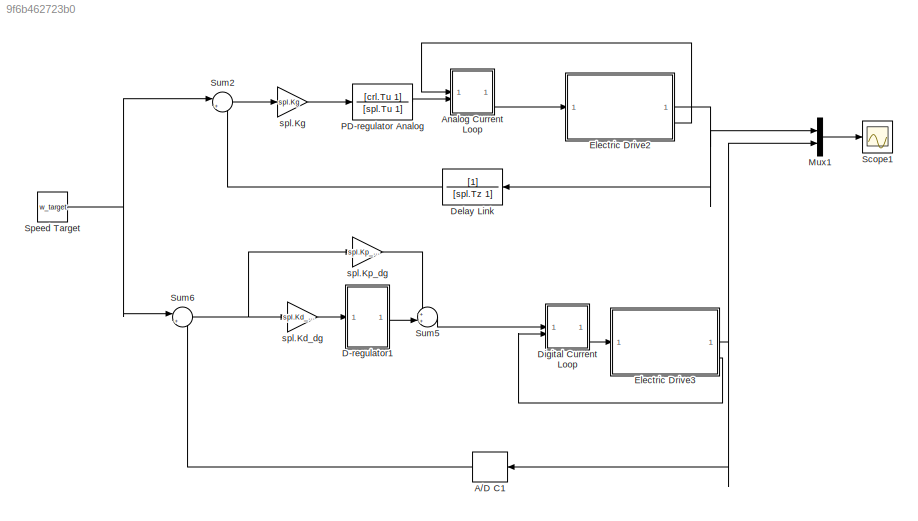
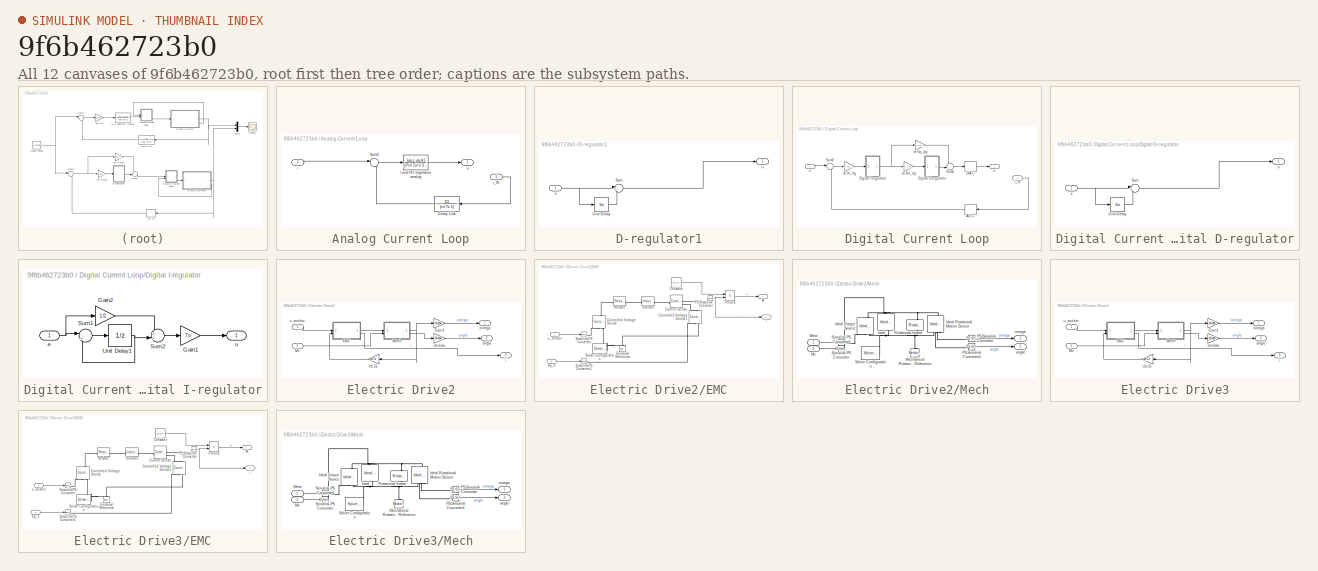
[diagram: thumbnail index - all 12 canvases of the model, root first then tree order]
MODEL slx_9f6b462723b0
KIND model
CONFIG AbsTol = auto
CONFIG EnableMultiTasking = off
CONFIG FixedStep = To/100
CONFIG MaxStep = auto
CONFIG MinStep = auto
CONFIG RelTol = 1e-3
CONFIG SampleTimeConstraint = Unconstrained
CONFIG SolverName = ode3
CONFIG StartTime = 0.0
CONFIG StopTime = Tmdl
BLOCK [ZeroOrderHold] A//D C1
  SampleTime = To
BLOCK [SubSystem] Analog Current Loop
BLOCK [TransferFcn] Analog Current Loop/Delay Link
  Denominator = [crl.Tz 1]
BLOCK [TransferFcn] Analog Current Loop/I and PD regulators analog
  Denominator = [3*crl.Tu^2 3*crl.Tu 0]
  Numerator = [ob.L ob.R]
BLOCK [Sum] Analog Current Loop/Sum2
  Inputs = |+-
BLOCK [Inport] Analog Current Loop/i
  Port = 2
BLOCK [Inport] Analog Current Loop/i_fb
BLOCK [Outport] Analog Current Loop/u
BLOCK [SubSystem] D-regulator1
BLOCK [Sum] D-regulator1/Sum
  Inputs = |+-
BLOCK [UnitDelay] D-regulator1/Unit Delay
  HasFrameUpgradeWarning = on
  SampleTime = To
BLOCK [Inport] D-regulator1/e
BLOCK [Outport] D-regulator1/u
BLOCK [TransferFcn] Delay Link
  Denominator = [spl.Tz 1]
BLOCK [SubSystem] Digital Current Loop
BLOCK [ZeroOrderHold] Digital Current Loop/A//D C
  SampleTime = To
BLOCK [ZeroOrderHold] Digital Current Loop/D//A C
  SampleTime = To
BLOCK [SubSystem] Digital Current Loop/Digital D-regulator
BLOCK [Sum] Digital Current Loop/Digital D-regulator/Sum
  Inputs = |+-
BLOCK [UnitDelay] Digital Current Loop/Digital D-regulator/Unit Delay
  HasFrameUpgradeWarning = on
  SampleTime = To
BLOCK [Inport] Digital Current Loop/Digital D-regulator/e
BLOCK [Outport] Digital Current Loop/Digital D-regulator/u
BLOCK [SubSystem] Digital Current Loop/Digital I-regulator
BLOCK [Gain] Digital Current Loop/Digital I-regulator/Gain1
  Gain = To
BLOCK [Gain] Digital Current Loop/Digital I-regulator/Gain2
  Gain = 1/2
BLOCK [Sum] Digital Current Loop/Digital I-regulator/Sum1
  Inputs = |++
BLOCK [Sum] Digital Current Loop/Digital I-regulator/Sum2
  Inputs = ++|
BLOCK [UnitDelay] Digital Current Loop/Digital I-regulator/Unit Delay1
  HasFrameUpgradeWarning = on
  SampleTime = To
BLOCK [Inport] Digital Current Loop/Digital I-regulator/e
BLOCK [Outport] Digital Current Loop/Digital I-regulator/u
BLOCK [Sum] Digital Current Loop/Sum3
  Inputs = |+-
BLOCK [Sum] Digital Current Loop/Sum4
  Inputs = ++|
BLOCK [Gain] Digital Current Loop/crl.Kd_dg
  Gain = crl.Kd_dg
BLOCK [Gain] Digital Current Loop/crl.Ki_dg
  Gain = crl.Ki_dg
BLOCK [Gain] Digital Current Loop/crl.Kp_dg
  Gain = crl.Kp_dg
BLOCK [Inport] Digital Current Loop/e
BLOCK [Inport] Digital Current Loop/i_fb
  Port = 2
BLOCK [Outport] Digital Current Loop/u
BLOCK [SubSystem] Electric Drive2
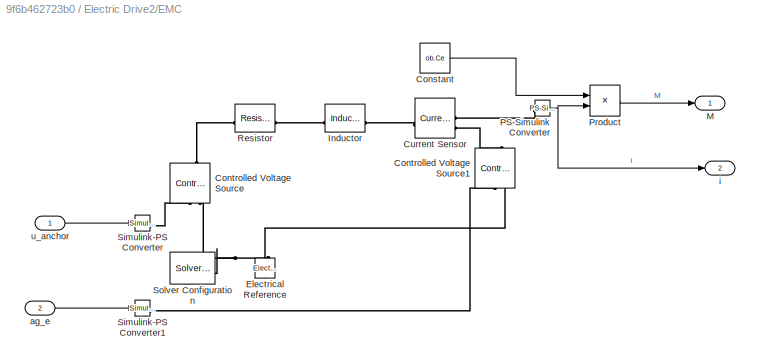
BLOCK [SubSystem] Electric Drive2/EMC
BLOCK [Constant] Electric Drive2/EMC/Constant
  Value = ob.Ce
BLOCK [Reference] Electric Drive2/EMC/Controlled Voltage Source  REF=fl_lib/Electrical/Electrical Sources/Controlled Voltage
Source
  NameLocation = right
  SourceBlock = fl_lib/Electrical/Electrical Sources/Controlled Voltage\nSource
  SourceType = Controlled Voltage\nSource
BLOCK [Reference] Electric Drive2/EMC/Controlled Voltage Source1  REF=fl_lib/Electrical/Electrical Sources/Controlled Voltage
Source
  NameLocation = right
  SourceBlock = fl_lib/Electrical/Electrical Sources/Controlled Voltage\nSource
  SourceType = Controlled Voltage\nSource
BLOCK [Reference] Electric Drive2/EMC/Current Sensor  REF=fl_lib/Electrical/Electrical Sensors/Current Sensor
  SourceBlock = fl_lib/Electrical/Electrical Sensors/Current Sensor
  SourceType = Current Sensor
BLOCK [Reference] Electric Drive2/EMC/Electrical Reference  REF=fl_lib/Electrical/Electrical Elements/Electrical Reference
  NameLocation = right
  SourceBlock = fl_lib/Electrical/Electrical Elements/Electrical Reference
  SourceType = Electrical Reference
BLOCK [Reference] Electric Drive2/EMC/Inductor  REF=fl_lib/Electrical/Electrical Elements/Inductor
  SourceBlock = fl_lib/Electrical/Electrical Elements/Inductor
  SourceType = Inductor
BLOCK [Outport] Electric Drive2/EMC/M
BLOCK [Reference] Electric Drive2/EMC/PS-Simulink Converter  REF=nesl_utility/PS-Simulink
Converter
  SourceBlock = nesl_utility/PS-Simulink\nConverter
  SourceType = PS-Simulink\nConverter
BLOCK [Product] Electric Drive2/EMC/Product
BLOCK [Reference] Electric Drive2/EMC/Resistor  REF=fl_lib/Electrical/Electrical Elements/Resistor
  SourceBlock = fl_lib/Electrical/Electrical Elements/Resistor
  SourceType = Resistor
BLOCK [Reference] Electric Drive2/EMC/Simulink-PS Converter  REF=nesl_utility/Simulink-PS
Converter
  SourceBlock = nesl_utility/Simulink-PS\nConverter
  SourceType = Simulink-PS\nConverter
BLOCK [Reference] Electric Drive2/EMC/Simulink-PS Converter1  REF=nesl_utility/Simulink-PS
Converter
  SourceBlock = nesl_utility/Simulink-PS\nConverter
  SourceType = Simulink-PS\nConverter
BLOCK [Reference] Electric Drive2/EMC/Solver Configuration  REF=nesl_utility/Solver
Configuration
  SourceBlock = nesl_utility/Solver\nConfiguration
  SourceType = Solver\nConfiguration
BLOCK [Inport] Electric Drive2/EMC/ag_e
  Port = 2
BLOCK [Outport] Electric Drive2/EMC/i
  Port = 2
BLOCK [Inport] Electric Drive2/EMC/u_anchor
BLOCK [Gain] Electric Drive2/Gain1
  Gain = ob.kdw
BLOCK [Inport] Electric Drive2/Mc
  Port = 2
BLOCK [SubSystem] Electric Drive2/Mech
BLOCK [Reference] Electric Drive2/Mech/Ideal Rotational Motion Sensor  REF=fl_lib/Mechanical/Mechanical Sensors/Ideal Rotational
Motion Sensor
  NameLocation = left
  SourceBlock = fl_lib/Mechanical/Mechanical Sensors/Ideal Rotational\nMotion Sensor
  SourceType = Ideal Rotational\nMotion Sensor
BLOCK [Reference] Electric Drive2/Mech/Ideal Torque Source  REF=fl_lib/Mechanical/Mechanical Sources/Ideal Torque Source
  NameLocation = right
  SourceBlock = fl_lib/Mechanical/Mechanical Sources/Ideal Torque Source
  SourceType = Ideal Torque Source
BLOCK [Inport] Electric Drive2/Mech/Mc
  Port = 2
BLOCK [Reference] Electric Drive2/Mech/Mechanical Rotational Reference  REF=fl_lib/Mechanical/Rotational Elements/Mechanical
Rotational Reference
  NameLocation = right
  SourceBlock = fl_lib/Mechanical/Rotational Elements/Mechanical\nRotational Reference
  SourceType = Mechanical\nRotational Reference
BLOCK [Inport] Electric Drive2/Mech/Mme
BLOCK [Reference] Electric Drive2/Mech/PS-Simulink Converter  REF=nesl_utility/PS-Simulink
Converter
  SourceBlock = nesl_utility/PS-Simulink\nConverter
  SourceType = PS-Simulink\nConverter
BLOCK [Reference] Electric Drive2/Mech/PS-Simulink Converter1  REF=nesl_utility/PS-Simulink
Converter
  SourceBlock = nesl_utility/PS-Simulink\nConverter
  SourceType = PS-Simulink\nConverter
BLOCK [Reference] Electric Drive2/Mech/Rotational Inerter  REF=fl_lib/Mechanical/Rotational Elements/Rotational Inerter
  NameLocation = left
  SourceBlock = fl_lib/Mechanical/Rotational Elements/Rotational Inerter
  SourceType = Rotational Inerter
BLOCK [Reference] Electric Drive2/Mech/Simulink-PS Converter  REF=nesl_utility/Simulink-PS
Converter
  SourceBlock = nesl_utility/Simulink-PS\nConverter
  SourceType = Simulink-PS\nConverter
BLOCK [Reference] Electric Drive2/Mech/Simulink-PS Converter1  REF=nesl_utility/Simulink-PS
Converter
  SourceBlock = nesl_utility/Simulink-PS\nConverter
  SourceType = Simulink-PS\nConverter
BLOCK [Reference] Electric Drive2/Mech/Solver Configuration  REF=nesl_utility/Solver
Configuration
  SourceBlock = nesl_utility/Solver\nConfiguration
  SourceType = Solver\nConfiguration
BLOCK [Outport] Electric Drive2/Mech/angle
  Port = 2
BLOCK [Reference] Electric Drive2/Mech/load  REF=fl_lib/Mechanical/Mechanical Sources/Ideal Torque Source
  SourceBlock = fl_lib/Mechanical/Mechanical Sources/Ideal Torque Source
  SourceType = Ideal Torque Source
BLOCK [Outport] Electric Drive2/Mech/omega
BLOCK [Outport] Electric Drive2/angle
  Port = 2
BLOCK [Outport] Electric Drive2/i
  Port = 3
BLOCK [Gain] Electric Drive2/ob.Ce
  Gain = ob.Ce
BLOCK [Gain] Electric Drive2/ob.kdw
  Gain = ob.kdw
  NameLocation = top
BLOCK [Outport] Electric Drive2/omega
BLOCK [Inport] Electric Drive2/u_anchor
BLOCK [SubSystem] Electric Drive3
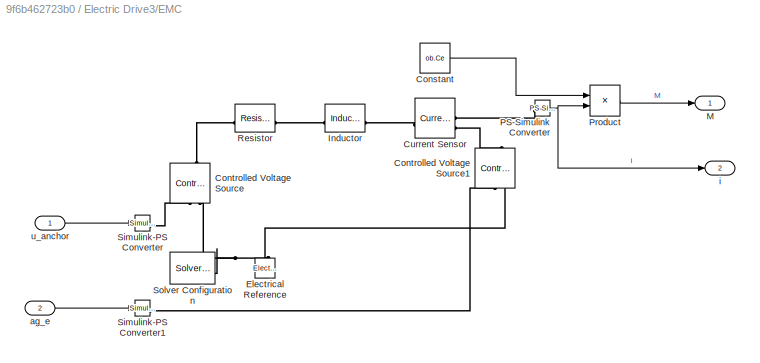
BLOCK [SubSystem] Electric Drive3/EMC
BLOCK [Constant] Electric Drive3/EMC/Constant
  Value = ob.Ce
BLOCK [Reference] Electric Drive3/EMC/Controlled Voltage Source  REF=fl_lib/Electrical/Electrical Sources/Controlled Voltage
Source
  NameLocation = right
  SourceBlock = fl_lib/Electrical/Electrical Sources/Controlled Voltage\nSource
  SourceType = Controlled Voltage\nSource
BLOCK [Reference] Electric Drive3/EMC/Controlled Voltage Source1  REF=fl_lib/Electrical/Electrical Sources/Controlled Voltage
Source
  NameLocation = right
  SourceBlock = fl_lib/Electrical/Electrical Sources/Controlled Voltage\nSource
  SourceType = Controlled Voltage\nSource
BLOCK [Reference] Electric Drive3/EMC/Current Sensor  REF=fl_lib/Electrical/Electrical Sensors/Current Sensor
  SourceBlock = fl_lib/Electrical/Electrical Sensors/Current Sensor
  SourceType = Current Sensor
BLOCK [Reference] Electric Drive3/EMC/Electrical Reference  REF=fl_lib/Electrical/Electrical Elements/Electrical Reference
  NameLocation = right
  SourceBlock = fl_lib/Electrical/Electrical Elements/Electrical Reference
  SourceType = Electrical Reference
BLOCK [Reference] Electric Drive3/EMC/Inductor  REF=fl_lib/Electrical/Electrical Elements/Inductor
  SourceBlock = fl_lib/Electrical/Electrical Elements/Inductor
  SourceType = Inductor
BLOCK [Outport] Electric Drive3/EMC/M
BLOCK [Reference] Electric Drive3/EMC/PS-Simulink Converter  REF=nesl_utility/PS-Simulink
Converter
  SourceBlock = nesl_utility/PS-Simulink\nConverter
  SourceType = PS-Simulink\nConverter
BLOCK [Product] Electric Drive3/EMC/Product
BLOCK [Reference] Electric Drive3/EMC/Resistor  REF=fl_lib/Electrical/Electrical Elements/Resistor
  SourceBlock = fl_lib/Electrical/Electrical Elements/Resistor
  SourceType = Resistor
BLOCK [Reference] Electric Drive3/EMC/Simulink-PS Converter  REF=nesl_utility/Simulink-PS
Converter
  SourceBlock = nesl_utility/Simulink-PS\nConverter
  SourceType = Simulink-PS\nConverter
BLOCK [Reference] Electric Drive3/EMC/Simulink-PS Converter1  REF=nesl_utility/Simulink-PS
Converter
  SourceBlock = nesl_utility/Simulink-PS\nConverter
  SourceType = Simulink-PS\nConverter
BLOCK [Reference] Electric Drive3/EMC/Solver Configuration  REF=nesl_utility/Solver
Configuration
  SourceBlock = nesl_utility/Solver\nConfiguration
  SourceType = Solver\nConfiguration
BLOCK [Inport] Electric Drive3/EMC/ag_e
  Port = 2
BLOCK [Outport] Electric Drive3/EMC/i
  Port = 2
BLOCK [Inport] Electric Drive3/EMC/u_anchor
BLOCK [Gain] Electric Drive3/Gain1
  Gain = ob.kdw
BLOCK [Inport] Electric Drive3/Mc
  Port = 2
BLOCK [SubSystem] Electric Drive3/Mech
BLOCK [Reference] Electric Drive3/Mech/Ideal Rotational Motion Sensor  REF=fl_lib/Mechanical/Mechanical Sensors/Ideal Rotational
Motion Sensor
  NameLocation = left
  SourceBlock = fl_lib/Mechanical/Mechanical Sensors/Ideal Rotational\nMotion Sensor
  SourceType = Ideal Rotational\nMotion Sensor
BLOCK [Reference] Electric Drive3/Mech/Ideal Torque Source  REF=fl_lib/Mechanical/Mechanical Sources/Ideal Torque Source
  NameLocation = right
  SourceBlock = fl_lib/Mechanical/Mechanical Sources/Ideal Torque Source
  SourceType = Ideal Torque Source
BLOCK [Inport] Electric Drive3/Mech/Mc
  Port = 2
BLOCK [Reference] Electric Drive3/Mech/Mechanical Rotational Reference  REF=fl_lib/Mechanical/Rotational Elements/Mechanical
Rotational Reference
  NameLocation = right
  SourceBlock = fl_lib/Mechanical/Rotational Elements/Mechanical\nRotational Reference
  SourceType = Mechanical\nRotational Reference
BLOCK [Inport] Electric Drive3/Mech/Mme
BLOCK [Reference] Electric Drive3/Mech/PS-Simulink Converter  REF=nesl_utility/PS-Simulink
Converter
  SourceBlock = nesl_utility/PS-Simulink\nConverter
  SourceType = PS-Simulink\nConverter
BLOCK [Reference] Electric Drive3/Mech/PS-Simulink Converter1  REF=nesl_utility/PS-Simulink
Converter
  SourceBlock = nesl_utility/PS-Simulink\nConverter
  SourceType = PS-Simulink\nConverter
BLOCK [Reference] Electric Drive3/Mech/Rotational Inerter  REF=fl_lib/Mechanical/Rotational Elements/Rotational Inerter
  NameLocation = left
  SourceBlock = fl_lib/Mechanical/Rotational Elements/Rotational Inerter
  SourceType = Rotational Inerter
BLOCK [Reference] Electric Drive3/Mech/Simulink-PS Converter  REF=nesl_utility/Simulink-PS
Converter
  SourceBlock = nesl_utility/Simulink-PS\nConverter
  SourceType = Simulink-PS\nConverter
BLOCK [Reference] Electric Drive3/Mech/Simulink-PS Converter1  REF=nesl_utility/Simulink-PS
Converter
  SourceBlock = nesl_utility/Simulink-PS\nConverter
  SourceType = Simulink-PS\nConverter
BLOCK [Reference] Electric Drive3/Mech/Solver Configuration  REF=nesl_utility/Solver
Configuration
  SourceBlock = nesl_utility/Solver\nConfiguration
  SourceType = Solver\nConfiguration
BLOCK [Outport] Electric Drive3/Mech/angle
  Port = 2
BLOCK [Reference] Electric Drive3/Mech/load  REF=fl_lib/Mechanical/Mechanical Sources/Ideal Torque Source
  SourceBlock = fl_lib/Mechanical/Mechanical Sources/Ideal Torque Source
  SourceType = Ideal Torque Source
BLOCK [Outport] Electric Drive3/Mech/omega
BLOCK [Outport] Electric Drive3/angle
  Port = 2
BLOCK [Outport] Electric Drive3/i
  Port = 3
BLOCK [Gain] Electric Drive3/ob.Ce
  Gain = ob.Ce
BLOCK [Gain] Electric Drive3/ob.kdw
  Gain = ob.kdw
  NameLocation = top
BLOCK [Outport] Electric Drive3/omega
BLOCK [Inport] Electric Drive3/u_anchor
BLOCK [Mux] Mux1
  DisplayOption = bar
  Inputs = 2
BLOCK [TransferFcn] PD-regulator Analog
  Denominator = [spl.Tu 1]
  Numerator = [crl.Tu 1]
BLOCK [Scope] Scope1
  Floating = off
  NumInputPorts = 1
  ScopeSpecificationString = Simulink.scopes.TimeScopeBlockCfg('CurrentConfiguration', extmgr.ConfigurationSet(extmgr.Configuration('Core','General UI',true),extmgr.Configuration('Core','Source UI',true),extmgr.Configuration('Sources','WiredSimulink',true,'DataLogging',true,'DataLoggingVariableName','out','DataLoggingSaveFormat','Array'),extmgr.Configuration('Visuals','Time Domain',true,'SerializedDisplays',{struct('MinYLimRe...<+1477ch>
BLOCK [Constant] Speed Target
  Value = w_target
BLOCK [Sum] Sum2
  Inputs = |+-
BLOCK [Sum] Sum5
  Inputs = ++|
BLOCK [Sum] Sum6
  Inputs = |+-
BLOCK [Gain] spl.Kd_dg
  Gain = spl.Kd_dg
BLOCK [Gain] spl.Kg
  Gain = spl.Kg
BLOCK [Gain] spl.Kp_dg
  Gain = spl.Kp_dg
LINE A//D C1:1 -> Sum6:2
LINE Analog Current Loop/Delay Link:1 -> Analog Current Loop/Sum2:2
LINE Analog Current Loop/I and PD regulators analog:1 -> Analog Current Loop/u:1
LINE Analog Current Loop/Sum2:1 -> Analog Current Loop/I and PD regulators analog:1
LINE Analog Current Loop/i:1 -> Analog Current Loop/Sum2:1
LINE Analog Current Loop/i_fb:1 -> Analog Current Loop/Delay Link:1
LINE Analog Current Loop:1 -> Electric Drive2:1
LINE D-regulator1/Sum:1 -> D-regulator1/u:1
LINE D-regulator1/Unit Delay:1 -> D-regulator1/Sum:2
NET D-regulator1/e:1 -> D-regulator1/Sum:1, D-regulator1/Unit Delay:1
LINE D-regulator1:1 -> Sum5:2
LINE Delay Link:1 -> Sum2:2
LINE Digital Current Loop/A//D C:1 -> Digital Current Loop/Sum3:2
LINE Digital Current Loop/D//A C:1 -> Digital Current Loop/u:1
LINE Digital Current Loop/Digital D-regulator/Sum:1 -> Digital Current Loop/Digital D-regulator/u:1
LINE Digital Current Loop/Digital D-regulator/Unit Delay:1 -> Digital Current Loop/Digital D-regulator/Sum:2
NET Digital Current Loop/Digital D-regulator/e:1 -> Digital Current Loop/Digital D-regulator/Sum:1, Digital Current Loop/Digital D-regulator/Unit Delay:1
LINE Digital Current Loop/Digital D-regulator:1 -> Digital Current Loop/Sum4:2
LINE Digital Current Loop/Digital I-regulator/Gain1:1 -> Digital Current Loop/Digital I-regulator/u:1
LINE Digital Current Loop/Digital I-regulator/Gain2:1 -> Digital Current Loop/Digital I-regulator/Sum2:1
LINE Digital Current Loop/Digital I-regulator/Sum1:1 -> Digital Current Loop/Digital I-regulator/Unit Delay1:1
LINE Digital Current Loop/Digital I-regulator/Sum2:1 -> Digital Current Loop/Digital I-regulator/Gain1:1
NET Digital Current Loop/Digital I-regulator/Unit Delay1:1 -> Digital Current Loop/Digital I-regulator/Sum1:2, Digital Current Loop/Digital I-regulator/Sum2:2
NET Digital Current Loop/Digital I-regulator/e:1 -> Digital Current Loop/Digital I-regulator/Gain2:1, Digital Current Loop/Digital I-regulator/Sum1:1
NET Digital Current Loop/Digital I-regulator:1 -> Digital Current Loop/crl.Kd_dg:1, Digital Current Loop/crl.Kp_dg:1
LINE Digital Current Loop/Sum3:1 -> Digital Current Loop/crl.Ki_dg:1
LINE Digital Current Loop/Sum4:1 -> Digital Current Loop/D//A C:1
LINE Digital Current Loop/crl.Kd_dg:1 -> Digital Current Loop/Digital D-regulator:1
LINE Digital Current Loop/crl.Ki_dg:1 -> Digital Current Loop/Digital I-regulator:1
LINE Digital Current Loop/crl.Kp_dg:1 -> Digital Current Loop/Sum4:1
LINE Digital Current Loop/e:1 -> Digital Current Loop/Sum3:1
LINE Digital Current Loop/i_fb:1 -> Digital Current Loop/A//D C:1
LINE Digital Current Loop:1 -> Electric Drive3:1
LINE Electric Drive2/EMC/Constant:1 -> Electric Drive2/EMC/Product:1
NET Electric Drive2/EMC/PS-Simulink Converter:1 -> Electric Drive2/EMC/Product:2, Electric Drive2/EMC/i:1
LINE Electric Drive2/EMC/Product:1 -> Electric Drive2/EMC/M:1
LINE Electric Drive2/EMC/ag_e:1 -> Electric Drive2/EMC/Simulink-PS Converter1:1
LINE Electric Drive2/EMC/u_anchor:1 -> Electric Drive2/EMC/Simulink-PS Converter:1
LINE Electric Drive2/EMC:1 -> Electric Drive2/Mech:1
LINE Electric Drive2/EMC:2 -> Electric Drive2/i:1
LINE Electric Drive2/Gain1:1 -> Electric Drive2/omega:1
LINE Electric Drive2/Mc:1 -> Electric Drive2/Mech:2
LINE Electric Drive2/Mech/Mc:1 -> Electric Drive2/Mech/Simulink-PS Converter1:1
LINE Electric Drive2/Mech/Mme:1 -> Electric Drive2/Mech/Simulink-PS Converter:1
LINE Electric Drive2/Mech/PS-Simulink Converter1:1 -> Electric Drive2/Mech/angle:1
LINE Electric Drive2/Mech/PS-Simulink Converter:1 -> Electric Drive2/Mech/omega:1
NET Electric Drive2/Mech:1 -> Electric Drive2/Gain1:1, Electric Drive2/ob.Ce:1
LINE Electric Drive2/Mech:2 -> Electric Drive2/ob.kdw:1
LINE Electric Drive2/ob.Ce:1 -> Electric Drive2/EMC:2
LINE Electric Drive2/ob.kdw:1 -> Electric Drive2/angle:1
LINE Electric Drive2/u_anchor:1 -> Electric Drive2/EMC:1
NET Electric Drive2:1 -> Delay Link:1, Mux1:1
LINE Electric Drive2:3 -> Analog Current Loop:1
LINE Electric Drive3/EMC/Constant:1 -> Electric Drive3/EMC/Product:1
NET Electric Drive3/EMC/PS-Simulink Converter:1 -> Electric Drive3/EMC/Product:2, Electric Drive3/EMC/i:1
LINE Electric Drive3/EMC/Product:1 -> Electric Drive3/EMC/M:1
LINE Electric Drive3/EMC/ag_e:1 -> Electric Drive3/EMC/Simulink-PS Converter1:1
LINE Electric Drive3/EMC/u_anchor:1 -> Electric Drive3/EMC/Simulink-PS Converter:1
LINE Electric Drive3/EMC:1 -> Electric Drive3/Mech:1
LINE Electric Drive3/EMC:2 -> Electric Drive3/i:1
LINE Electric Drive3/Gain1:1 -> Electric Drive3/omega:1
LINE Electric Drive3/Mc:1 -> Electric Drive3/Mech:2
LINE Electric Drive3/Mech/Mc:1 -> Electric Drive3/Mech/Simulink-PS Converter1:1
LINE Electric Drive3/Mech/Mme:1 -> Electric Drive3/Mech/Simulink-PS Converter:1
LINE Electric Drive3/Mech/PS-Simulink Converter1:1 -> Electric Drive3/Mech/angle:1
LINE Electric Drive3/Mech/PS-Simulink Converter:1 -> Electric Drive3/Mech/omega:1
NET Electric Drive3/Mech:1 -> Electric Drive3/Gain1:1, Electric Drive3/ob.Ce:1
LINE Electric Drive3/Mech:2 -> Electric Drive3/ob.kdw:1
LINE Electric Drive3/ob.Ce:1 -> Electric Drive3/EMC:2
LINE Electric Drive3/ob.kdw:1 -> Electric Drive3/angle:1
LINE Electric Drive3/u_anchor:1 -> Electric Drive3/EMC:1
NET Electric Drive3:1 -> A//D C1:1, Mux1:2
LINE Electric Drive3:3 -> Digital Current Loop:2
LINE Mux1:1 -> Scope1:1
LINE PD-regulator Analog:1 -> Analog Current Loop:2
NET Speed Target:1 -> Sum2:1, Sum6:1
LINE Sum2:1 -> spl.Kg:1
LINE Sum5:1 -> Digital Current Loop:1
NET Sum6:1 -> spl.Kd_dg:1, spl.Kp_dg:1
LINE spl.Kd_dg:1 -> D-regulator1:1
LINE spl.Kg:1 -> PD-regulator Analog:1
LINE spl.Kp_dg:1 -> Sum5:1
PLINE Electric Drive2/EMC/Controlled Voltage Source1:LConn1 -- Electric Drive2/EMC/Current Sensor:RConn2
PLINE Electric Drive2/EMC/Controlled Voltage Source1:RConn1 -- Electric Drive2/EMC/Simulink-PS Converter1:RConn1
PNET net1: Electric Drive2/EMC/Controlled Voltage Source1:RConn2 -- Electric Drive2/EMC/Controlled Voltage Source:RConn2 -- Electric Drive2/EMC/Electrical Reference:LConn1 -- Electric Drive2/EMC/Solver Configuration:RConn1
PLINE Electric Drive2/EMC/Controlled Voltage Source:LConn1 -- Electric Drive2/EMC/Resistor:LConn1
PLINE Electric Drive2/EMC/Controlled Voltage Source:RConn1 -- Electric Drive2/EMC/Simulink-PS Converter:RConn1
PLINE Electric Drive2/EMC/Current Sensor:LConn1 -- Electric Drive2/EMC/Inductor:RConn1
PLINE Electric Drive2/EMC/Current Sensor:RConn1 -- Electric Drive2/EMC/PS-Simulink Converter:LConn1
PLINE Electric Drive2/EMC/Inductor:LConn1 -- Electric Drive2/EMC/Resistor:RConn1
PNET net2: Electric Drive2/Mech/Ideal Rotational Motion Sensor:LConn1 -- Electric Drive2/Mech/Ideal Torque Source:LConn1 -- Electric Drive2/Mech/Rotational Inerter:LConn1 -- Electric Drive2/Mech/load:RConn2
PNET net3: Electric Drive2/Mech/Ideal Rotational Motion Sensor:RConn1 -- Electric Drive2/Mech/Ideal Torque Source:RConn2 -- Electric Drive2/Mech/Mechanical Rotational Reference:LConn1 -- Electric Drive2/Mech/Rotational Inerter:RConn1 -- Electric Drive2/Mech/Solver Configuration:RConn1 -- Electric Drive2/Mech/load:LConn1
PLINE Electric Drive2/Mech/Ideal Rotational Motion Sensor:RConn2 -- Electric Drive2/Mech/PS-Simulink Converter:LConn1
PLINE Electric Drive2/Mech/Ideal Rotational Motion Sensor:RConn3 -- Electric Drive2/Mech/PS-Simulink Converter1:LConn1
PLINE Electric Drive2/Mech/Ideal Torque Source:RConn1 -- Electric Drive2/Mech/Simulink-PS Converter:RConn1
PLINE Electric Drive2/Mech/Simulink-PS Converter1:RConn1 -- Electric Drive2/Mech/load:RConn1
PLINE Electric Drive3/EMC/Controlled Voltage Source1:LConn1 -- Electric Drive3/EMC/Current Sensor:RConn2
PLINE Electric Drive3/EMC/Controlled Voltage Source1:RConn1 -- Electric Drive3/EMC/Simulink-PS Converter1:RConn1
PNET net4: Electric Drive3/EMC/Controlled Voltage Source1:RConn2 -- Electric Drive3/EMC/Controlled Voltage Source:RConn2 -- Electric Drive3/EMC/Electrical Reference:LConn1 -- Electric Drive3/EMC/Solver Configuration:RConn1
PLINE Electric Drive3/EMC/Controlled Voltage Source:LConn1 -- Electric Drive3/EMC/Resistor:LConn1
PLINE Electric Drive3/EMC/Controlled Voltage Source:RConn1 -- Electric Drive3/EMC/Simulink-PS Converter:RConn1
PLINE Electric Drive3/EMC/Current Sensor:LConn1 -- Electric Drive3/EMC/Inductor:RConn1
PLINE Electric Drive3/EMC/Current Sensor:RConn1 -- Electric Drive3/EMC/PS-Simulink Converter:LConn1
PLINE Electric Drive3/EMC/Inductor:LConn1 -- Electric Drive3/EMC/Resistor:RConn1
PNET net5: Electric Drive3/Mech/Ideal Rotational Motion Sensor:LConn1 -- Electric Drive3/Mech/Ideal Torque Source:LConn1 -- Electric Drive3/Mech/Rotational Inerter:LConn1 -- Electric Drive3/Mech/load:RConn2
PNET net6: Electric Drive3/Mech/Ideal Rotational Motion Sensor:RConn1 -- Electric Drive3/Mech/Ideal Torque Source:RConn2 -- Electric Drive3/Mech/Mechanical Rotational Reference:LConn1 -- Electric Drive3/Mech/Rotational Inerter:RConn1 -- Electric Drive3/Mech/Solver Configuration:RConn1 -- Electric Drive3/Mech/load:LConn1
PLINE Electric Drive3/Mech/Ideal Rotational Motion Sensor:RConn2 -- Electric Drive3/Mech/PS-Simulink Converter:LConn1
PLINE Electric Drive3/Mech/Ideal Rotational Motion Sensor:RConn3 -- Electric Drive3/Mech/PS-Simulink Converter1:LConn1
PLINE Electric Drive3/Mech/Ideal Torque Source:RConn1 -- Electric Drive3/Mech/Simulink-PS Converter:RConn1
PLINE Electric Drive3/Mech/Simulink-PS Converter1:RConn1 -- Electric Drive3/Mech/load:RConn1
note: NET lines group one-source signal fan-out (src -> all destinations, sorted); 1:1 wires keep LINE; PNET lines group multi-terminal physical nets as a canonical sorted terminal list (undirected conserving connections); 2-terminal nets keep the pairwise PLINE form
